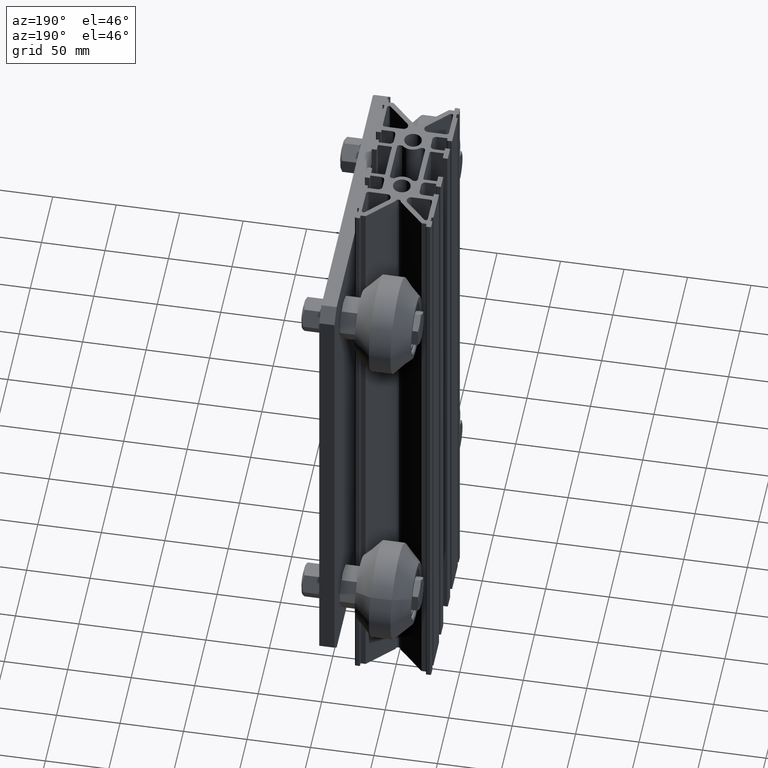
[diagram: clean part render]
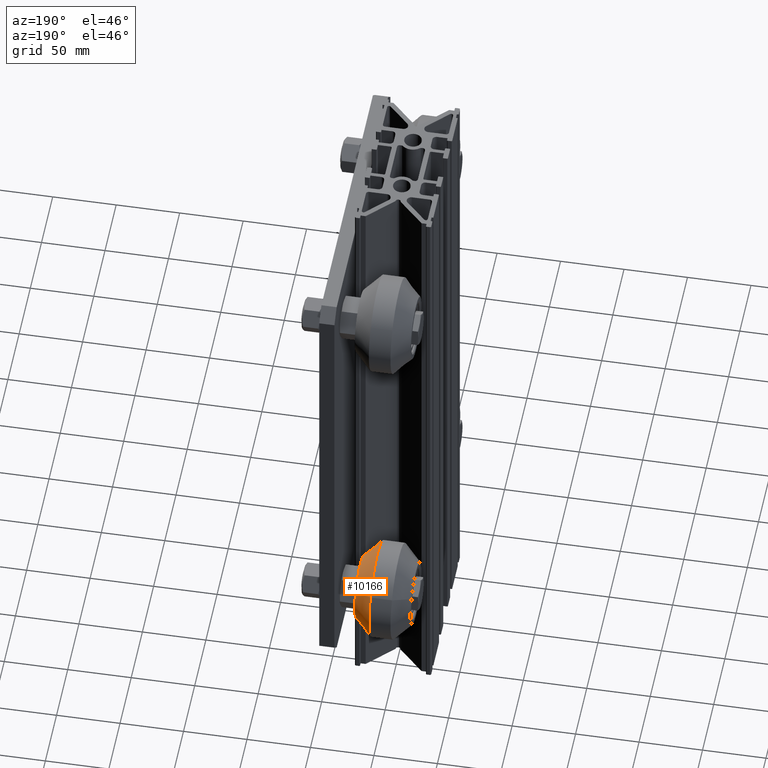
[diagram: same view with one face highlighted and labeled with its STEP entity id]
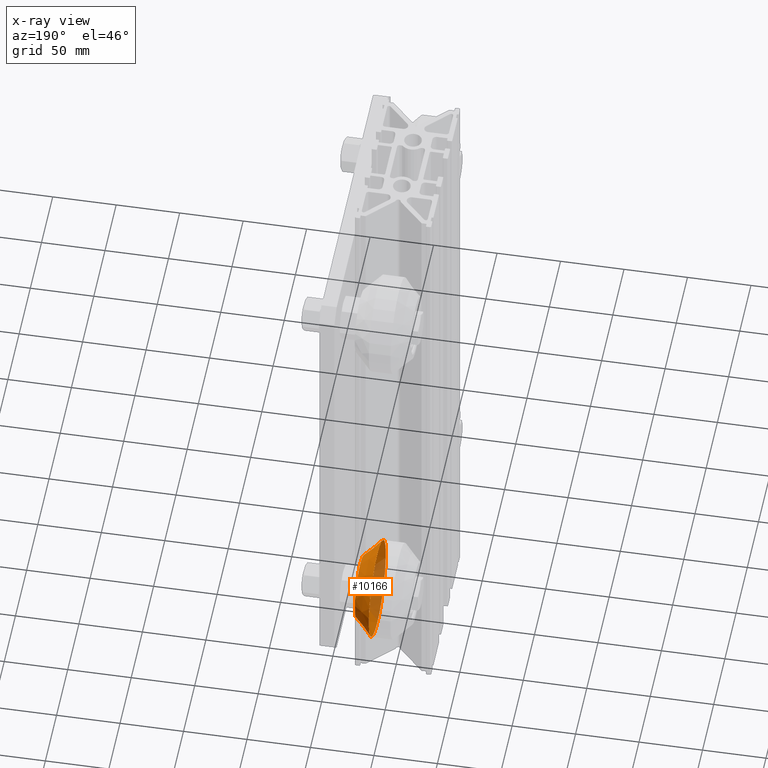
[diagram: x-ray of the same camera — body ghosted, the highlighted face saturated]
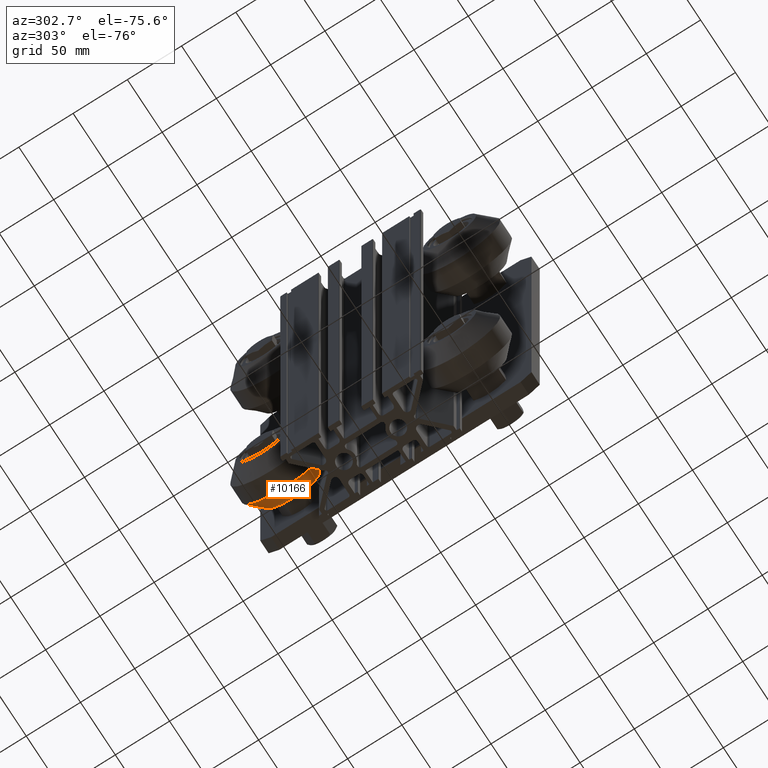
[diagram: same view with one face highlighted and labeled with its STEP entity id]
A machine part, auxiliary view. The second image highlights one B-rep face of the part: STEP entity #10166.
The next image is the same camera in x-ray: the body ghosted, the highlighted face saturated — about 30% of this face is hidden behind the body in this view.
A second angle (auxiliary view) of the same face is appended — the face is thin or edge-on in the first view.
In plain terms, the highlighted conical surface has half-angle 45 deg.
Its self-contained STEP definition (entity closure, byte-faithful):
#404=CONICAL_SURFACE('',#11409,31.25,0.785398163397449);
#1081=FACE_OUTER_BOUND('',#1639,.T.);
#1639=EDGE_LOOP('',(#8888,#8889,#8890,#8891));
#2158=CIRCLE('',#11398,24.5);
#2165=CIRCLE('',#11410,38.);
#2968=LINE('',#17448,#3737);
#3737=VECTOR('',#14061,31.25);
#4643=VERTEX_POINT('',#17424);
#4650=VERTEX_POINT('',#17446);
#6086=EDGE_CURVE('',#4643,#4643,#2158,.T.);
#6096=EDGE_CURVE('',#4650,#4650,#2165,.T.);
#6097=EDGE_CURVE('',#4650,#4643,#2968,.T.);
#8888=ORIENTED_EDGE('',*,*,#6096,.F.);
#8889=ORIENTED_EDGE('',*,*,#6097,.T.);
#8890=ORIENTED_EDGE('',*,*,#6086,.T.);
#8891=ORIENTED_EDGE('',*,*,#6097,.F.);
#10166=ADVANCED_FACE('',(#1081),#404,.T.);
#11398=AXIS2_PLACEMENT_3D('',#17425,#14032,#14033);
#11409=AXIS2_PLACEMENT_3D('',#17445,#14057,#14058);
#11410=AXIS2_PLACEMENT_3D('',#17447,#14059,#14060);
#14032=DIRECTION('center_axis',(1.,0.,0.));
#14033=DIRECTION('ref_axis',(0.,1.,0.));
#14057=DIRECTION('center_axis',(1.,0.,0.));
#14058=DIRECTION('ref_axis',(0.,1.,0.));
#14059=DIRECTION('center_axis',(1.,0.,0.));
#14060=DIRECTION('ref_axis',(0.,1.,0.));
#14061=DIRECTION('',(-0.707106781186547,0.707106781186548,8.65956056235494E-17));
#17424=CARTESIAN_POINT('',(-22.,-24.5,-3.00038465791102E-15));
#17425=CARTESIAN_POINT('Origin',(-22.,0.,0.));
#17445=CARTESIAN_POINT('Origin',(-15.25,0.,0.));
#17446=CARTESIAN_POINT('',(-8.5,-38.,-4.65365783675994E-15));
#17447=CARTESIAN_POINT('Origin',(-8.5,0.,0.));
#17448=CARTESIAN_POINT('',(-15.25,-31.25,-3.82702124733548E-15));